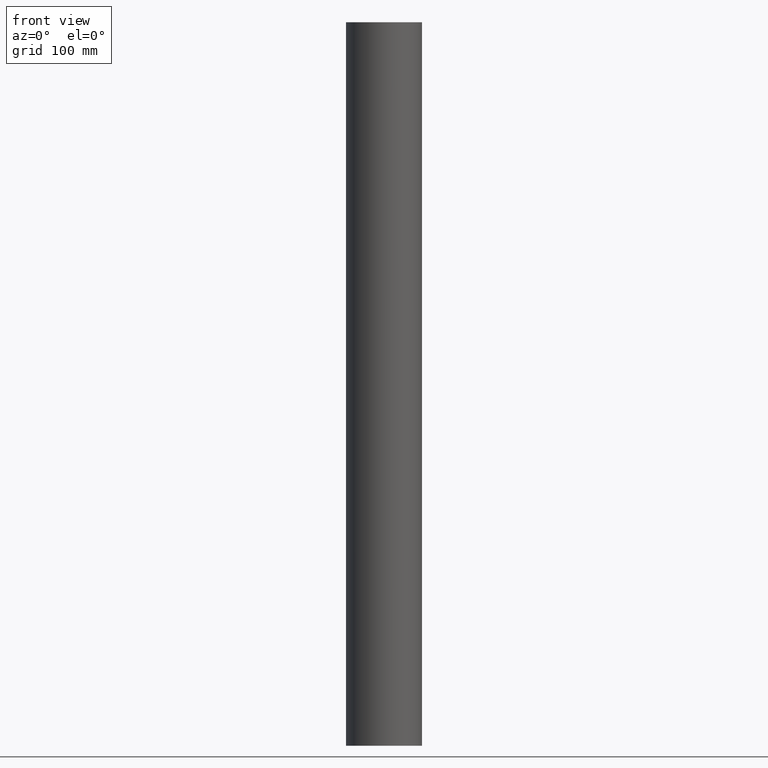
[diagram: clean part render]
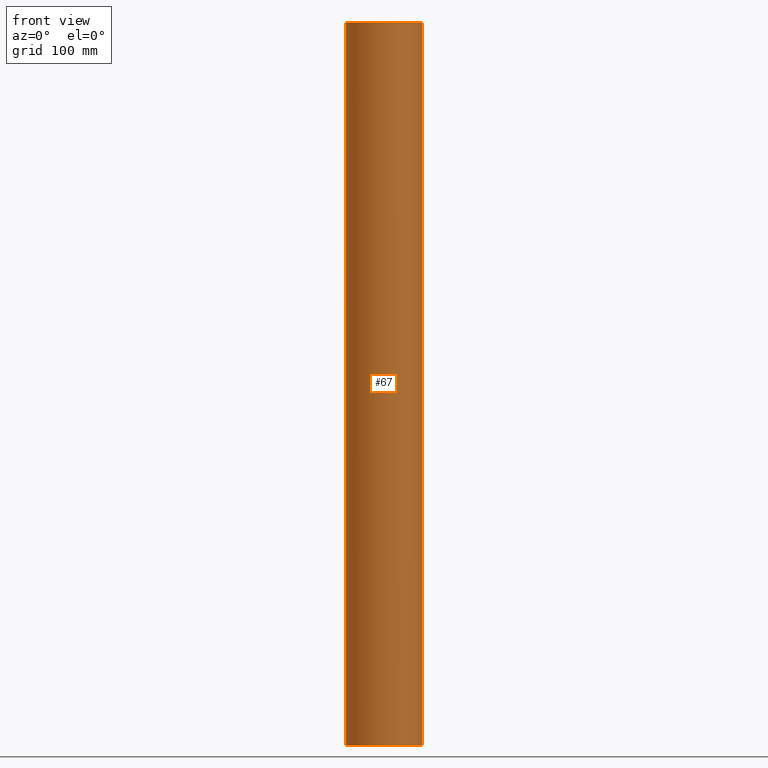
[diagram: same view with one face highlighted and labeled with its STEP entity id]
A machine part, front view. The second image highlights one B-rep face of the part: STEP entity #67.
In plain terms, the highlighted cylindrical surface (bore or boss wall) has radius 31.5 mm, axis along (0, 0, 1).
Its self-contained STEP definition (entity closure, byte-faithful):
#20=FACE_OUTER_BOUND('',#25,.T.);
#25=EDGE_LOOP('',(#52,#53,#54,#55));
#29=LINE('',#130,#31);
#31=VECTOR('',#114,31.5);
#34=CIRCLE('',#93,31.5);
#35=CIRCLE('',#95,31.5);
#38=VERTEX_POINT('',#125);
#39=VERTEX_POINT('',#128);
#43=EDGE_CURVE('',#38,#38,#34,.T.);
#44=EDGE_CURVE('',#39,#39,#35,.T.);
#45=EDGE_CURVE('',#39,#38,#29,.T.);
#52=ORIENTED_EDGE('',*,*,#44,.F.);
#53=ORIENTED_EDGE('',*,*,#45,.T.);
#54=ORIENTED_EDGE('',*,*,#43,.F.);
#55=ORIENTED_EDGE('',*,*,#45,.F.);
#59=CYLINDRICAL_SURFACE('',#94,31.5);
#67=ADVANCED_FACE('',(#20),#59,.T.);
#93=AXIS2_PLACEMENT_3D('',#126,#108,#109);
#94=AXIS2_PLACEMENT_3D('',#127,#110,#111);
#95=AXIS2_PLACEMENT_3D('',#129,#112,#113);
#108=DIRECTION('center_axis',(0.,0.,-1.));
#109=DIRECTION('ref_axis',(-1.,0.,0.));
#110=DIRECTION('center_axis',(0.,0.,1.));
#111=DIRECTION('ref_axis',(-1.,0.,0.));
#112=DIRECTION('center_axis',(0.,0.,1.));
#113=DIRECTION('ref_axis',(-1.,0.,0.));
#114=DIRECTION('',(0.,0.,-1.));
#125=CARTESIAN_POINT('',(31.5,3.85763741731416E-15,-300.));
#126=CARTESIAN_POINT('Origin',(0.,0.,-300.));
#127=CARTESIAN_POINT('Origin',(0.,0.,0.));
#128=CARTESIAN_POINT('',(31.5,3.85763741731416E-15,300.));
#129=CARTESIAN_POINT('Origin',(0.,0.,300.));
#130=CARTESIAN_POINT('',(31.5,3.85763741731416E-15,0.));